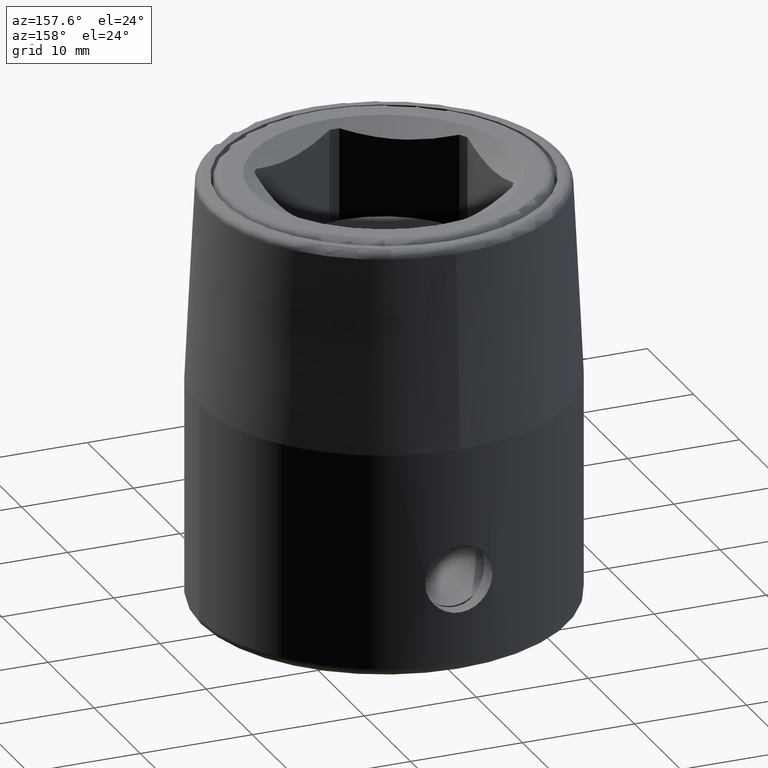
[diagram: clean part render]
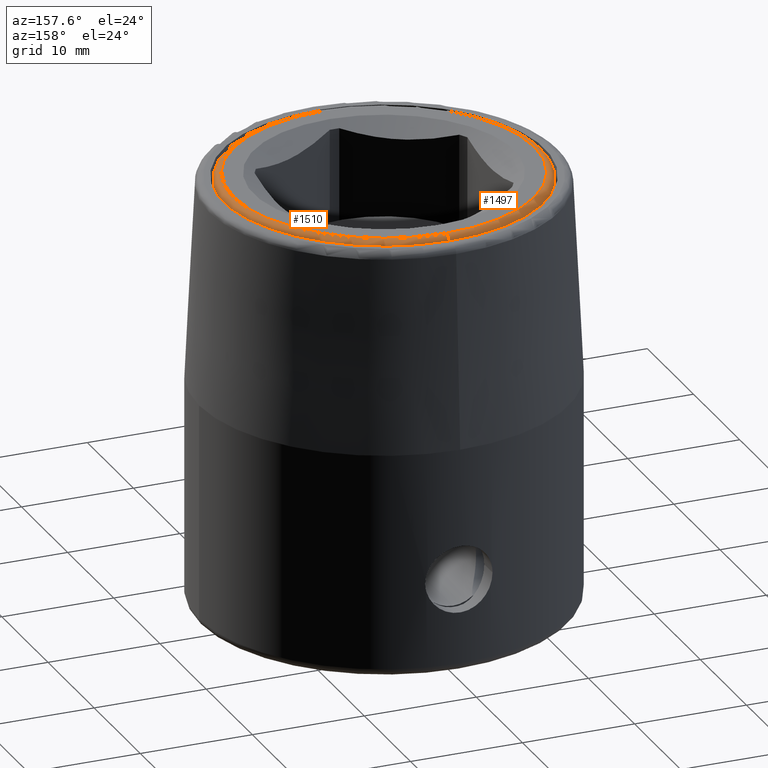
[diagram: same view with one multi-face feature highlighted, each face labeled with its STEP entity id]
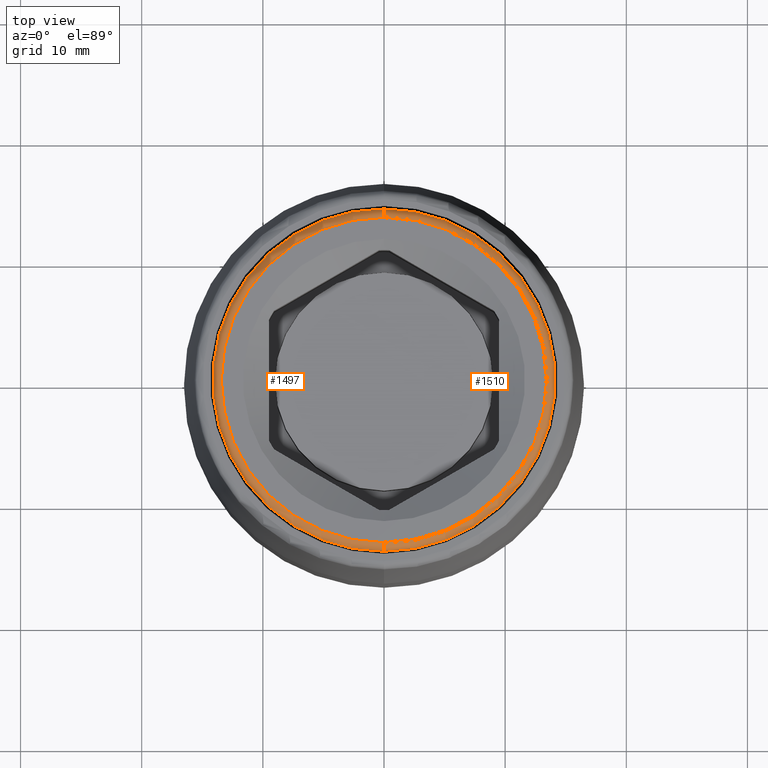
[diagram: same view with one multi-face feature highlighted, each face labeled with its STEP entity id]
A machine part, auxiliary view. The highlighted faces form ONE feature: a constant-radius fillet chain: 2 tangent blend faces with common blend radius 0.7 mm. The faces share edges in the B-rep.
A second angle (top view) of the same feature is appended — it is thin or edge-on in the first view.
Their STEP definitions:
[1] entity #1497 (Torus):
#279=CARTESIAN_POINT('',(0.E0,0.E0,3.8E1));
#280=DIRECTION('',(0.E0,0.E0,1.E0));
#281=DIRECTION('',(0.E0,1.E0,0.E0));
#282=AXIS2_PLACEMENT_3D('',#279,#280,#281);
#289=CARTESIAN_POINT('',(2.626010520146E-12,1.343237301620E1,3.73E1));
#290=DIRECTION('',(-1.E0,1.954998662956E-13,0.E0));
#291=DIRECTION('',(0.E0,0.E0,1.E0));
#292=AXIS2_PLACEMENT_3D('',#289,#290,#291);
#294=CARTESIAN_POINT('',(-2.629313433644E-12,-1.343237301620E1,3.73E1));
#295=DIRECTION('',(1.E0,-1.957444623057E-13,0.E0));
#296=DIRECTION('',(0.E0,0.E0,1.E0));
#297=AXIS2_PLACEMENT_3D('',#294,#295,#296);
#312=CARTESIAN_POINT('',(0.E0,0.E0,3.733312075792E1));
#313=DIRECTION('',(0.E0,0.E0,1.E0));
#314=DIRECTION('',(0.E0,1.E0,0.E0));
#315=AXIS2_PLACEMENT_3D('',#312,#313,#314);
#1197=CARTESIAN_POINT('',(-1.185795746708E-14,1.343237301620E1,3.8E1));
#1198=CARTESIAN_POINT('',(1.021296620516E-14,-1.343237301620E1,3.8E1));
#1199=VERTEX_POINT('',#1197);
#1200=VERTEX_POINT('',#1198);
#1201=CARTESIAN_POINT('',(0.E0,1.413158901673E1,3.733312075792E1));
#1202=CARTESIAN_POINT('',(0.E0,-1.413158901673E1,3.733312075792E1));
#1203=VERTEX_POINT('',#1201);
#1204=VERTEX_POINT('',#1202);
#1483=CARTESIAN_POINT('',(0.E0,0.E0,3.73E1));
#1484=DIRECTION('',(0.E0,0.E0,1.E0));
#1485=DIRECTION('',(6.084742554259E-3,9.999814877827E-1,0.E0));
#1486=AXIS2_PLACEMENT_3D('',#1483,#1484,#1485);
#1487=TOROIDAL_SURFACE('',#1486,1.343237301620E1,7.E-1);
#1488=ORIENTED_EDGE('',*,*,#1472,.T.);
#1490=ORIENTED_EDGE('',*,*,#1489,.T.);
#1492=ORIENTED_EDGE('',*,*,#1491,.F.);
#1494=ORIENTED_EDGE('',*,*,#1493,.F.);
#1495=EDGE_LOOP('',(#1488,#1490,#1492,#1494));
#1496=FACE_OUTER_BOUND('',#1495,.F.);
#1497=ADVANCED_FACE('',(#1496),#1487,.T.);
#283=CIRCLE('',#282,1.343237301620E1);
#293=CIRCLE('',#292,7.E-1);
#298=CIRCLE('',#297,7.E-1);
#316=CIRCLE('',#315,1.413158901673E1);
#1472=EDGE_CURVE('',#1199,#1200,#283,.T.);
#1489=EDGE_CURVE('',#1200,#1204,#298,.T.);
#1491=EDGE_CURVE('',#1203,#1204,#316,.T.);
#1493=EDGE_CURVE('',#1199,#1203,#293,.T.);
[2] entity #1510 (Torus):
#284=CARTESIAN_POINT('',(0.E0,0.E0,3.8E1));
#285=DIRECTION('',(0.E0,0.E0,1.E0));
#286=DIRECTION('',(0.E0,-1.E0,0.E0));
#287=AXIS2_PLACEMENT_3D('',#284,#285,#286);
#289=CARTESIAN_POINT('',(2.626010520146E-12,1.343237301620E1,3.73E1));
#290=DIRECTION('',(-1.E0,1.954998662956E-13,0.E0));
#291=DIRECTION('',(0.E0,0.E0,1.E0));
#292=AXIS2_PLACEMENT_3D('',#289,#290,#291);
#294=CARTESIAN_POINT('',(-2.629313433644E-12,-1.343237301620E1,3.73E1));
#295=DIRECTION('',(1.E0,-1.957444623057E-13,0.E0));
#296=DIRECTION('',(0.E0,0.E0,1.E0));
#297=AXIS2_PLACEMENT_3D('',#294,#295,#296);
#299=CARTESIAN_POINT('',(0.E0,0.E0,3.733312075792E1));
#300=DIRECTION('',(0.E0,0.E0,1.E0));
#301=DIRECTION('',(0.E0,-1.E0,0.E0));
#302=AXIS2_PLACEMENT_3D('',#299,#300,#301);
#1197=CARTESIAN_POINT('',(-1.185795746708E-14,1.343237301620E1,3.8E1));
#1198=CARTESIAN_POINT('',(1.021296620516E-14,-1.343237301620E1,3.8E1));
#1199=VERTEX_POINT('',#1197);
#1200=VERTEX_POINT('',#1198);
#1201=CARTESIAN_POINT('',(0.E0,1.413158901673E1,3.733312075792E1));
#1202=CARTESIAN_POINT('',(0.E0,-1.413158901673E1,3.733312075792E1));
#1203=VERTEX_POINT('',#1201);
#1204=VERTEX_POINT('',#1202);
#1498=CARTESIAN_POINT('',(0.E0,0.E0,3.73E1));
#1499=DIRECTION('',(0.E0,0.E0,1.E0));
#1500=DIRECTION('',(-6.084742554259E-3,-9.999814877827E-1,0.E0));
#1501=AXIS2_PLACEMENT_3D('',#1498,#1499,#1500);
#1502=TOROIDAL_SURFACE('',#1501,1.343237301620E1,7.E-1);
#1503=ORIENTED_EDGE('',*,*,#1474,.T.);
#1504=ORIENTED_EDGE('',*,*,#1493,.T.);
#1506=ORIENTED_EDGE('',*,*,#1505,.F.);
#1507=ORIENTED_EDGE('',*,*,#1489,.F.);
#1508=EDGE_LOOP('',(#1503,#1504,#1506,#1507));
#1509=FACE_OUTER_BOUND('',#1508,.F.);
#1510=ADVANCED_FACE('',(#1509),#1502,.T.);
#288=CIRCLE('',#287,1.343237301620E1);
#293=CIRCLE('',#292,7.E-1);
#298=CIRCLE('',#297,7.E-1);
#303=CIRCLE('',#302,1.413158901673E1);
#1474=EDGE_CURVE('',#1200,#1199,#288,.T.);
#1489=EDGE_CURVE('',#1200,#1204,#298,.T.);
#1493=EDGE_CURVE('',#1199,#1203,#293,.T.);
#1505=EDGE_CURVE('',#1204,#1203,#303,.T.);